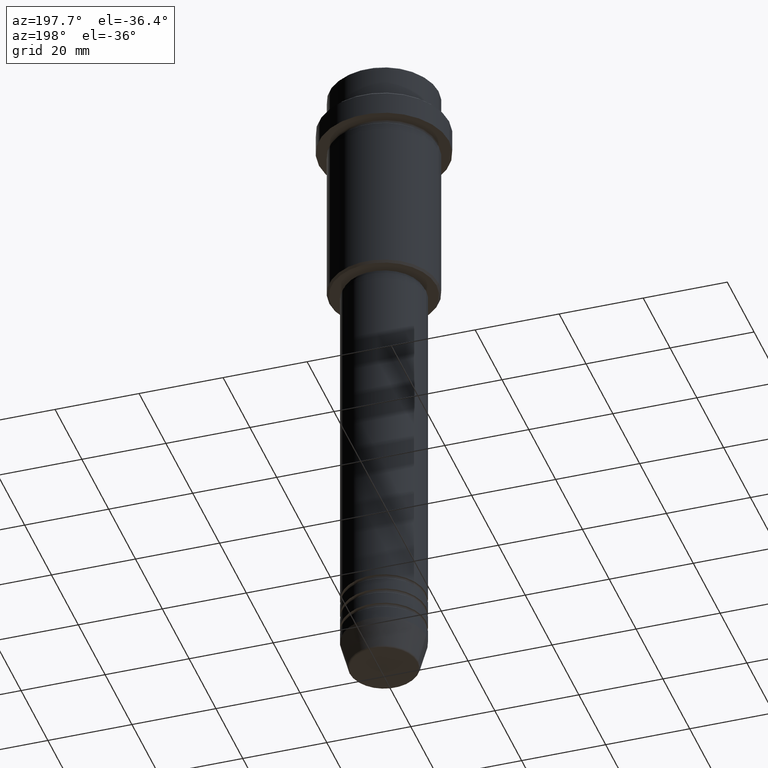
[diagram: clean part render]
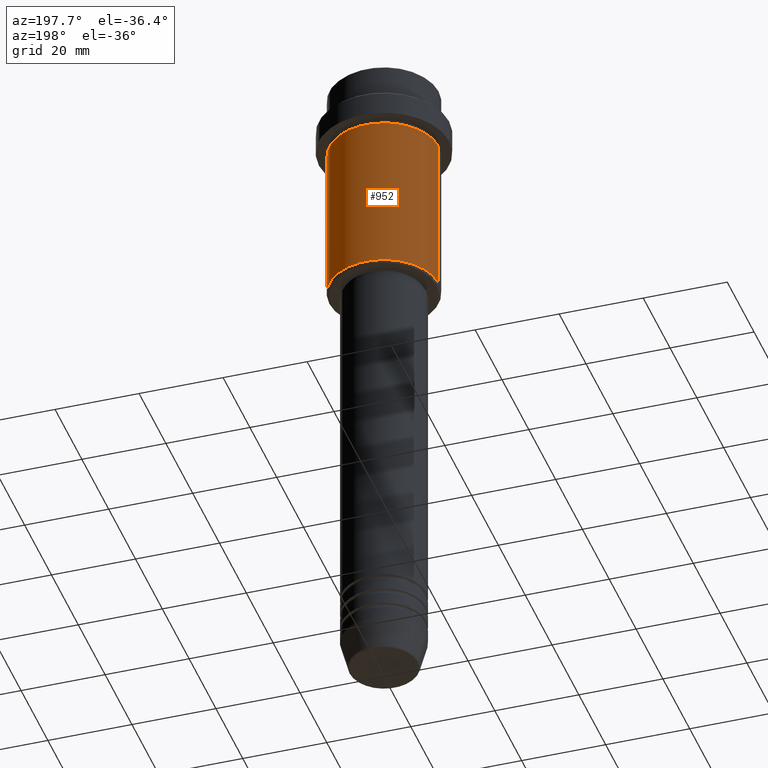
[diagram: same view with one face highlighted and labeled with its STEP entity id]
A machine part, auxiliary view. The second image highlights one B-rep face of the part: STEP entity #952.
In plain terms, the highlighted cylindrical surface (partial cylindrical patch) has radius 13 mm, axis along (-0, -0, 1).
Its self-contained STEP definition (entity closure, byte-faithful):
#17 = VECTOR ( 'NONE', #282, 1000.000000000000000 ) ;
#43 = DIRECTION ( 'NONE',  ( -0.000000000000000000, -0.000000000000000000, 1.000000000000000000 ) ) ;
#86 = AXIS2_PLACEMENT_3D ( 'NONE', #1021, #43, #479 ) ;
#104 = EDGE_CURVE ( 'NONE', #113, #1051, #1159, .T. ) ;
#113 = VERTEX_POINT ( 'NONE', #834 ) ;
#117 = CARTESIAN_POINT ( 'NONE',  ( 0.000000000000000000, 0.000000000000000000, -16.00000000000000000 ) ) ;
#149 = FACE_OUTER_BOUND ( 'NONE', #577, .T. ) ;
#197 = CIRCLE ( 'NONE', #1415, 13.00000000000000000 ) ;
#257 = CARTESIAN_POINT ( 'NONE',  ( 13.00000000000000000, 0.000000000000000000, -54.49999999999999289 ) ) ;
#259 = ORIENTED_EDGE ( 'NONE', *, *, #1066, .T. ) ;
#271 = VERTEX_POINT ( 'NONE', #659 ) ;
#282 = DIRECTION ( 'NONE',  ( -0.000000000000000000, -0.000000000000000000, 1.000000000000000000 ) ) ;
#335 = DIRECTION ( 'NONE',  ( -0.000000000000000000, -0.000000000000000000, 1.000000000000000000 ) ) ;
#389 = CARTESIAN_POINT ( 'NONE',  ( -13.00000000000000000, 1.592040838891559095E-15, 0.000000000000000000 ) ) ;
#433 = DIRECTION ( 'NONE',  ( -0.000000000000000000, -0.000000000000000000, 1.000000000000000000 ) ) ;
#463 = ORIENTED_EDGE ( 'NONE', *, *, #554, .F. ) ;
#479 = DIRECTION ( 'NONE',  ( 1.000000000000000000, 0.000000000000000000, 0.000000000000000000 ) ) ;
#518 = ORIENTED_EDGE ( 'NONE', *, *, #104, .T. ) ;
#554 = EDGE_CURVE ( 'NONE', #949, #271, #1134, .T. ) ;
#577 = EDGE_LOOP ( 'NONE', ( #259, #518, #1395, #463 ) ) ;
#586 = CYLINDRICAL_SURFACE ( 'NONE', #86, 13.00000000000000000 ) ;
#659 = CARTESIAN_POINT ( 'NONE',  ( 13.00000000000000000, 0.000000000000000000, -16.00000000000000000 ) ) ;
#674 = AXIS2_PLACEMENT_3D ( 'NONE', #973, #1178, #1296 ) ;
#802 = EDGE_CURVE ( 'NONE', #271, #1051, #197, .T. ) ;
#834 = CARTESIAN_POINT ( 'NONE',  ( -13.00000000000000000, 1.592040838891559095E-15, -54.49999999999999289 ) ) ;
#869 = CARTESIAN_POINT ( 'NONE',  ( 13.00000000000000000, 0.000000000000000000, 0.000000000000000000 ) ) ;
#949 = VERTEX_POINT ( 'NONE', #257 ) ;
#952 = ADVANCED_FACE ( 'NONE', ( #149 ), #586, .T. ) ;
#973 = CARTESIAN_POINT ( 'NONE',  ( 0.000000000000000000, 0.000000000000000000, -54.49999999999999289 ) ) ;
#1021 = CARTESIAN_POINT ( 'NONE',  ( 0.000000000000000000, 0.000000000000000000, 0.000000000000000000 ) ) ;
#1051 = VERTEX_POINT ( 'NONE', #1080 ) ;
#1066 = EDGE_CURVE ( 'NONE', #949, #113, #1090, .T. ) ;
#1080 = CARTESIAN_POINT ( 'NONE',  ( -13.00000000000000000, 1.592040838891559095E-15, -16.00000000000000000 ) ) ;
#1090 = CIRCLE ( 'NONE', #674, 13.00000000000000000 ) ;
#1134 = LINE ( 'NONE', #869, #1414 ) ;
#1159 = LINE ( 'NONE', #389, #17 ) ;
#1178 = DIRECTION ( 'NONE',  ( -0.000000000000000000, -0.000000000000000000, 1.000000000000000000 ) ) ;
#1296 = DIRECTION ( 'NONE',  ( -1.000000000000000000, 0.000000000000000000, 0.000000000000000000 ) ) ;
#1325 = DIRECTION ( 'NONE',  ( 1.000000000000000000, 0.000000000000000000, 0.000000000000000000 ) ) ;
#1395 = ORIENTED_EDGE ( 'NONE', *, *, #802, .F. ) ;
#1414 = VECTOR ( 'NONE', #433, 1000.000000000000000 ) ;
#1415 = AXIS2_PLACEMENT_3D ( 'NONE', #117, #335, #1325 ) ;